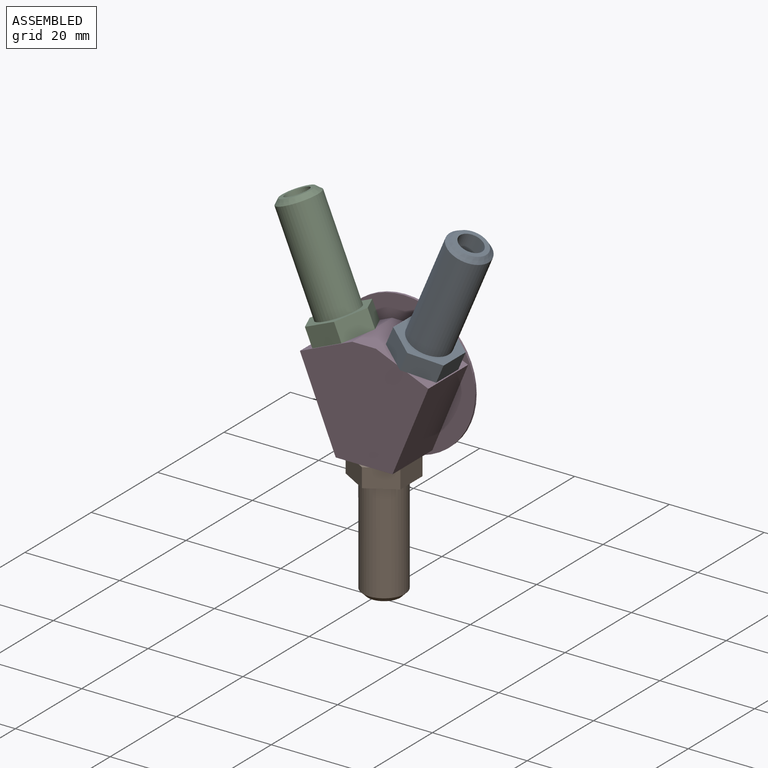
[diagram: assembled view]
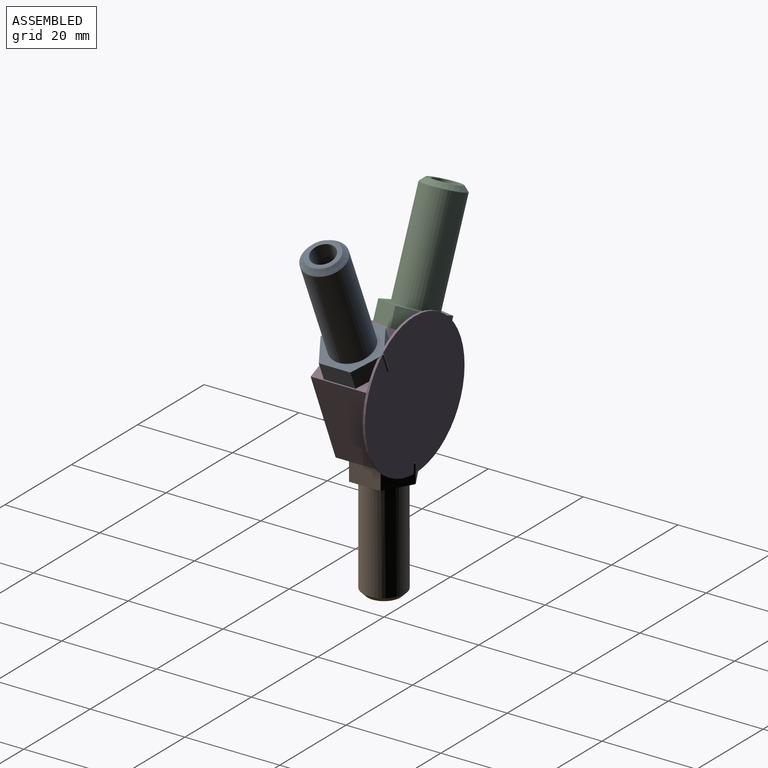
[diagram: assembled view, second angle]
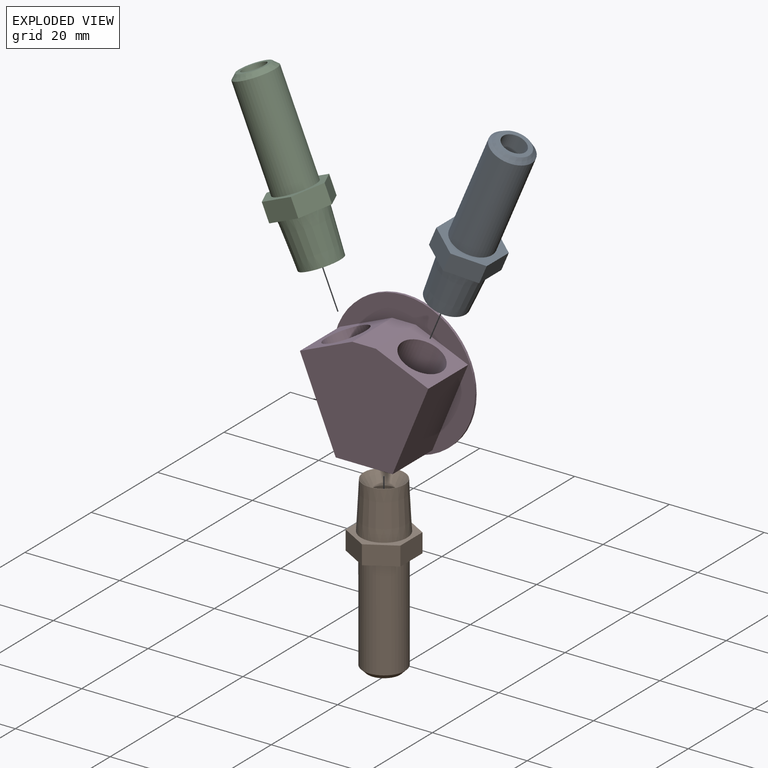
[diagram: exploded view]
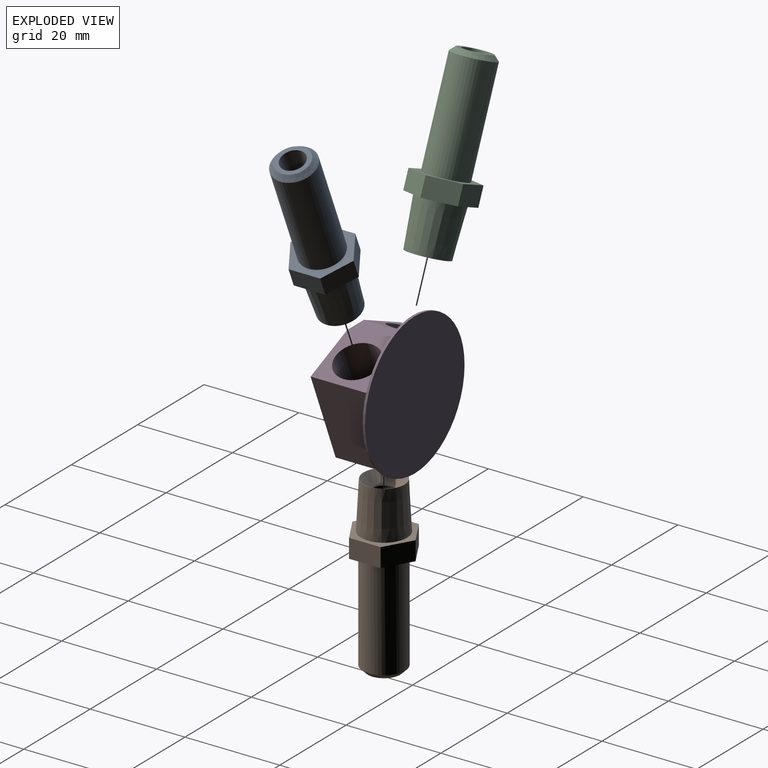
[diagram: exploded view, second angle]
ASSEMBLY  parts=4 mates=6
PART A: 16 faces, bbox 11.5x36.5x13.3 mm
  f0: cylinder r=2.5mm len=34mm, axis (0,-1,0), area 534.1mm2, adj f1,f14
  f1: plane 6.9x6.9mm, normal (0,1,0), area 17.8mm2, adj f0,f5
  f2: plane 13.33x11.55mm, normal (0,-1,0), area 41.1mm2, adj f6,f7,f8,f9,f10,f11,f12
  f3: plane 13.33x11.55mm, normal (0,1,0), area 53.3mm2, adj f4,f6,f7,f8,f9,f10,f11
  f4: cylinder r=4.45mm len=21.5mm, axis (0,-1,0), area 601.1mm2, adj f3,f5
  f5: cone r=4.45mm half-angle=45deg, axis (0,-1,0), area 35.1mm2, adj f1,f4
  f6: plane 5.77x4mm, normal (0.5,0,-0.87), area 26.7mm2, adj f2,f3,f7,f10
  f7: plane 6.67x4mm, normal (1,0,0), area 26.7mm2, adj f2,f3,f6,f8
  f8: plane 5.77x4mm, normal (0.5,0,0.87), area 26.7mm2, adj f2,f3,f7,f9
  f9: plane 5.77x4mm, normal (-0.5,0,0.87), area 26.7mm2, adj f2,f3,f8,f11
  f10: plane 5.77x4mm, normal (-0.5,0,-0.87), area 26.7mm2, adj f2,f3,f6,f11
  f11: plane 6.67x4mm, normal (-1,0,0), area 26.7mm2, adj f2,f3,f9,f10
  f12: cone r=4.87mm half-angle=3deg, axis (0,1,0), area 289.6mm2, adj f2,f13
  f13: plane 8.68x8.68mm, normal (0,-1,0), area 1.9mm2, adj f12,f15
  f14: cone r=2.5mm half-angle=3deg, axis (0,1,0), area 0.1mm2, adj f0,f15
  f15: cone r=4.27mm half-angle=35.3deg, axis (0,-1,0), area 65.1mm2, adj f13,f14
PART B: same geometry as A
PART C: same geometry as A
PART D: 16 faces, bbox 30x12.5x30 mm
  f0: cone r=0mm half-angle=59deg, axis (0,0,-1), area 18.4mm2, adj f1,f10,f12
  f1: cylinder r=4.5mm len=12mm, axis (0,0,-1), area 265.4mm2, adj f0,f5,f9,f10,f11,f12
  f2: plane 12x5mm, normal (0,0,1), area 60mm2, adj f3,f7,f8,f13
  f3: plane 12x11.05mm, normal (-0.39,0,0.92), area 80.4mm2, adj f2,f4,f8,f12,f13
  f4: plane 18.31x12mm, normal (-0.92,0,-0.38), area 237.7mm2, adj f3,f5,f8,f13
  f5: plane 12x12mm, normal (0,0,-1), area 80.4mm2, adj f1,f4,f6,f8,f13
  f6: plane 18.31x12mm, normal (0.92,0,-0.38), area 237.7mm2, adj f5,f7,f8,f13
  f7: plane 12x11.05mm, normal (0.39,0,0.92), area 80.4mm2, adj f2,f6,f8,f10,f13
  f8: plane 27.09x23mm, normal (0,-1,0), area 433.1mm2, adj f2,f3,f4,f5,f6,f7
  f9: cone r=0mm half-angle=59deg, axis (0.39,0,0.92), area 29.3mm2, adj f1,f10
  f10: cylinder r=4.5mm len=14.56mm, axis (0.39,0,0.92), area 315.1mm2, adj f0,f1,f7,f9
  f11: cone r=0mm half-angle=59deg, axis (-0.39,0,0.92), area 29.3mm2, adj f1,f12
  f12: cylinder r=4.5mm len=14.56mm, axis (-0.39,0,0.92), area 315.1mm2, adj f0,f1,f3,f11
  f13: plane 30x30mm, normal (0,-1,0), area 273.7mm2, adj f2,f3,f4,f5,f6,f7,f14
  f14: cylinder r=15mm len=30mm, axis (0,-1,0), area 47.1mm2, adj f13,f15
  f15: plane 30x30mm, normal (0,1,0), area 706.9mm2, adj f14
PLACE A rot(axis=(0.96,0.2,-0.2),92.3deg) t=(11.73,-6,29.4)mm
PLACE B rot(axis=(-1,0,0),90deg) t=(0,-6,-9.5)mm
PLACE C rot(axis=(0.48,0.48,0.73),107.7deg) t=(-11.73,-6,29.4)mm
PLACE D at identity fixed
MATE planar C.f0 <-> D.f12  axis (0.39,0,-0.92) through (-8.02,-6,20.66)mm
MATE planar D.f1 <-> B.f0  axis (0,0,-1) through (0,-6,0)mm
MATE cylindrical D.f0 <-> B.f0  axis (0,0,-1) through (0,-6,0)mm
MATE planar A.f0 <-> D.f10  axis (-0.39,0,-0.92) through (8.02,-6,20.66)mm
MATE cylindrical D.f12 <-> C.f0  axis (-0.39,0,0.92) through (-8.02,-6,20.66)mm
MATE cylindrical D.f10 <-> A.f0  axis (0.39,0,0.92) through (8.02,-6,20.66)mm
